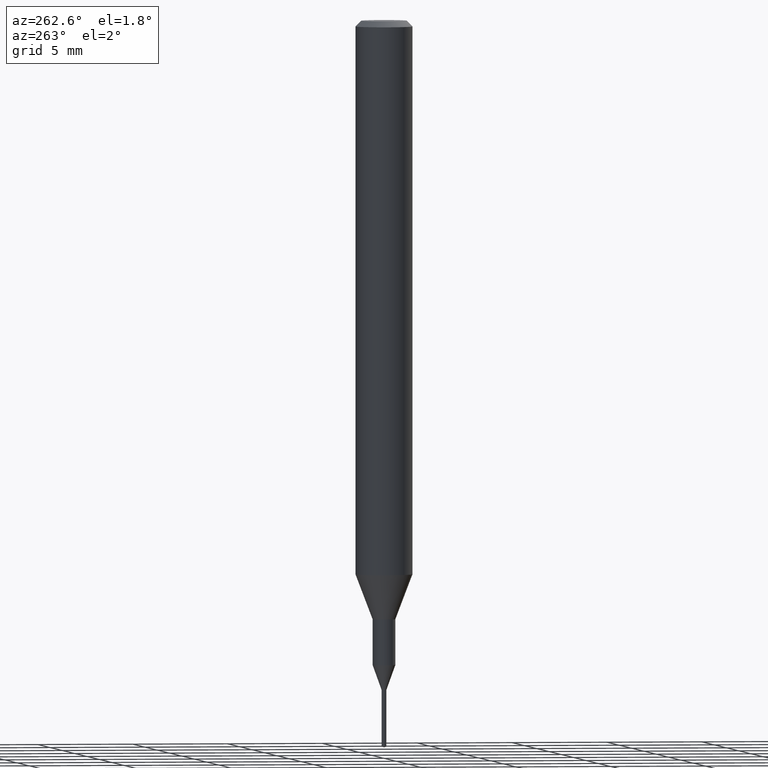
[diagram: clean part render]
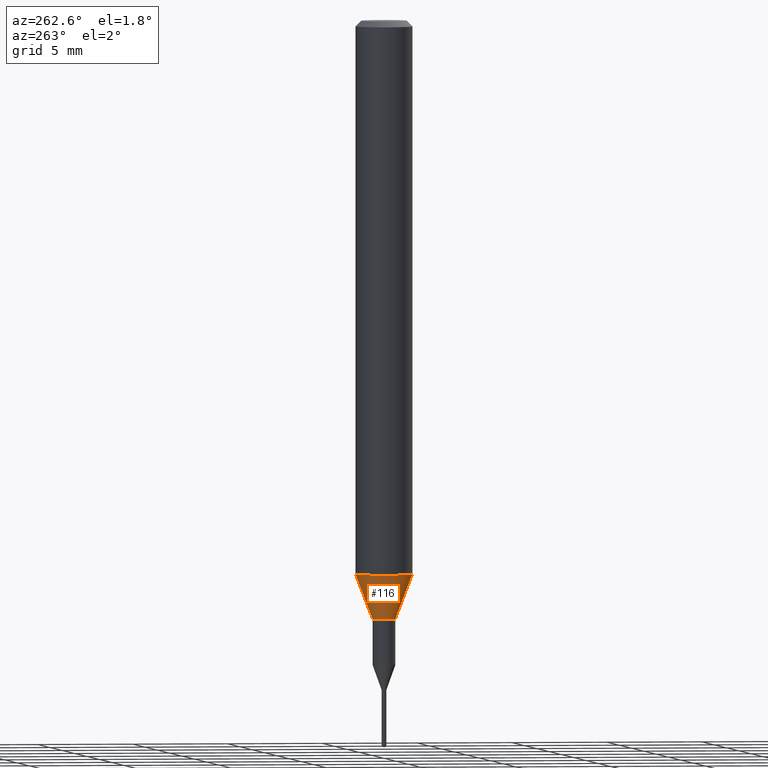
[diagram: same view with one face highlighted and labeled with its STEP entity id]
A machine part, auxiliary view. The second image highlights one B-rep face of the part: STEP entity #116.
In plain terms, the highlighted conical surface has half-angle 20.997 deg.
Its self-contained STEP definition (entity closure, byte-faithful):
#116=ADVANCED_FACE('',(#293),#294,.T.);
#120=EDGE_CURVE('',#252,#190,#299,.T.);
#142=EDGE_CURVE('',#252,#202,#323,.T.);
#146=EDGE_CURVE('',#202,#192,#327,.T.);
#190=VERTEX_POINT('',#376);
#192=VERTEX_POINT('',#378);
#200=EDGE_CURVE('',#192,#190,#387,.T.);
#202=VERTEX_POINT('',#389);
#252=VERTEX_POINT('',#446);
#293=FACE_OUTER_BOUND('',#485,.T.);
#294=CONICAL_SURFACE('',#486,1.05,0.366459241971866);
#299=CIRCLE('',#492,0.6);
#323=LINE('',#526,#527);
#327=CIRCLE('',#533,1.5);
#376=CARTESIAN_POINT('',(0.0,0.6,-31.3));
#378=CARTESIAN_POINT('',(0.0,1.5,-28.955));
#387=LINE('',#605,#606);
#389=CARTESIAN_POINT('',(1.83690953073357E-016,-1.5,-28.955));
#446=CARTESIAN_POINT('',(7.34763812293426E-017,-0.6,-31.3));
#485=EDGE_LOOP('',(#710,#711,#712,#713));
#486=AXIS2_PLACEMENT_3D('',#714,#715,#716);
#492=AXIS2_PLACEMENT_3D('',#725,#726,#727);
#526=CARTESIAN_POINT('',(1.2858366715135E-016,-1.05,-30.1275));
#527=VECTOR('',#760,1.0);
#533=AXIS2_PLACEMENT_3D('',#764,#765,#766);
#605=CARTESIAN_POINT('',(-1.2858366715135E-016,1.05,-30.1275));
#606=VECTOR('',#835,1.0);
#710=ORIENTED_EDGE('',*,*,#200,.T.);
#711=ORIENTED_EDGE('',*,*,#120,.F.);
#712=ORIENTED_EDGE('',*,*,#142,.T.);
#713=ORIENTED_EDGE('',*,*,#146,.T.);
#714=CARTESIAN_POINT('',(0.0,0.0,-30.1275));
#715=DIRECTION('',(-0.0,-0.0,1.0));
#716=DIRECTION('',(0.0,1.0,0.0));
#725=CARTESIAN_POINT('',(0.0,0.0,-31.3));
#726=DIRECTION('',(0.0,0.0,-1.0));
#727=DIRECTION('',(0.0,1.0,0.0));
#760=DIRECTION('',(4.38791184365088E-017,-0.358312026550805,0.93360189140182));
#764=CARTESIAN_POINT('',(0.0,0.0,-28.955));
#765=DIRECTION('',(0.0,0.0,-1.0));
#766=DIRECTION('',(0.0,1.0,0.0));
#835=DIRECTION('',(4.38791184365088E-017,-0.358312026550805,-0.93360189140182));